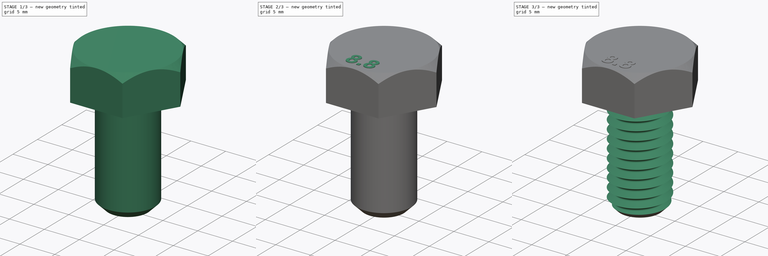
[diagram: build sequence overview — one tinted view per stage of 3, left to right]
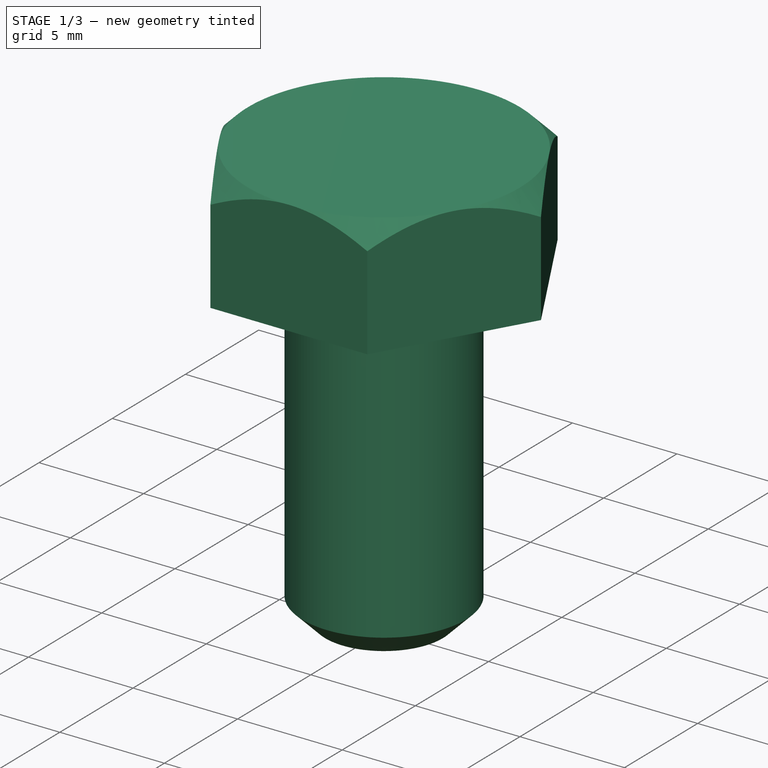
[diagram: stage 1 of 3 — iso view after this stage's code; geometry added in this stage tinted green]
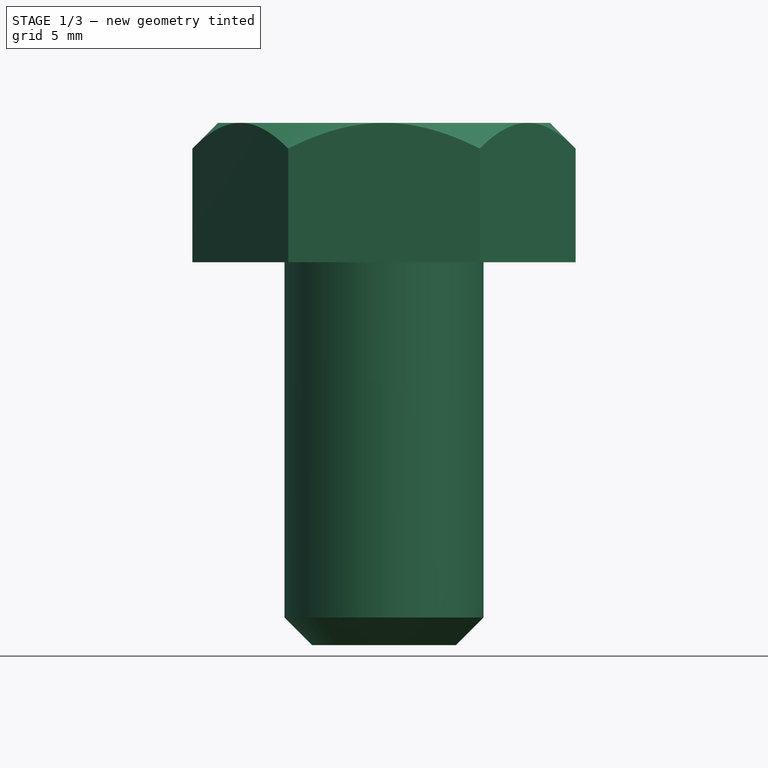
[diagram: stage 1 of 3 — front view after this stage's code; geometry added in this stage tinted green]
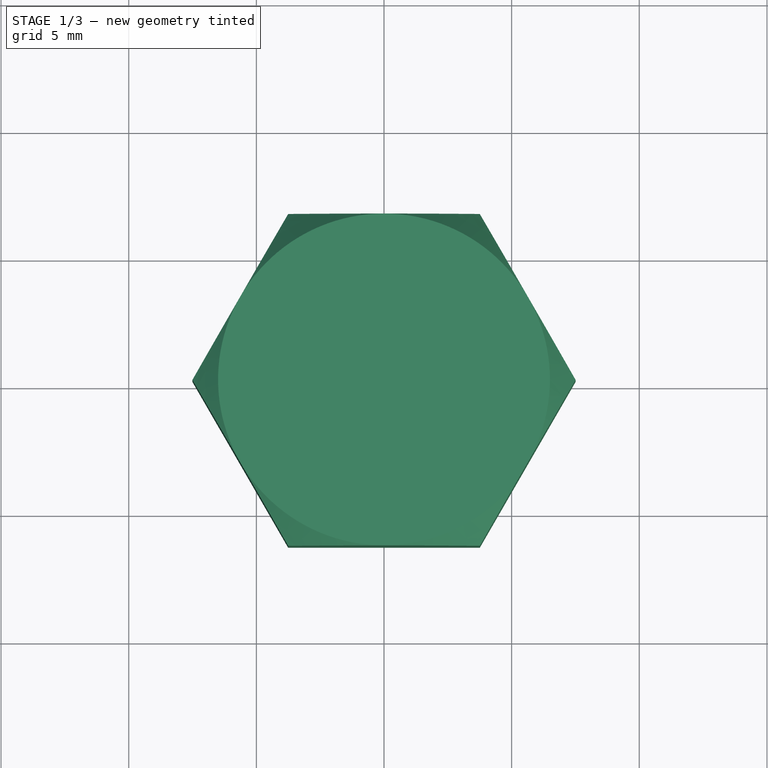
[diagram: stage 1 of 3 — top view after this stage's code; geometry added in this stage tinted green]
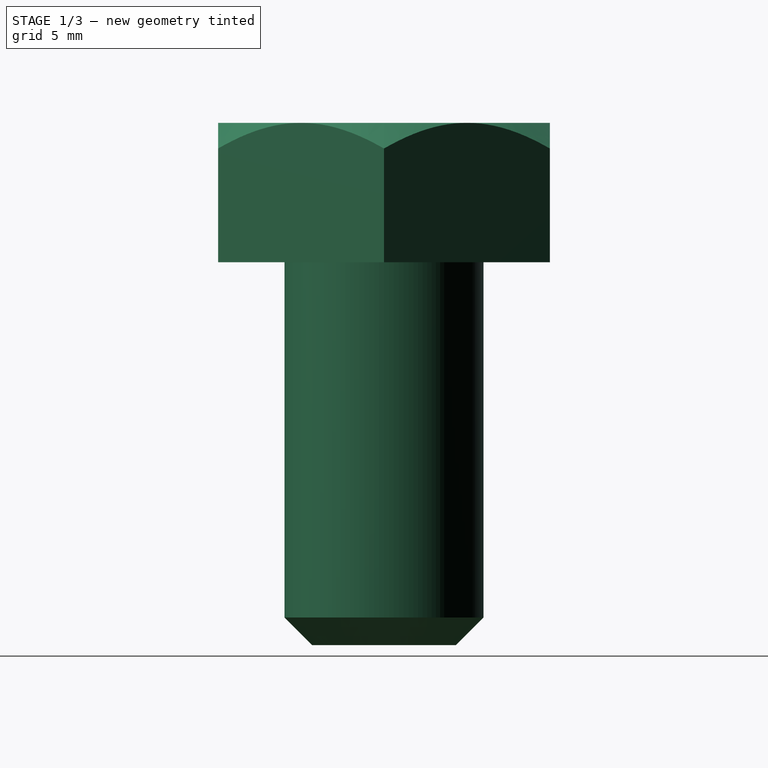
[diagram: stage 1 of 3 — right view after this stage's code; geometry added in this stage tinted green]
FCSTD DOCUMENT  (FreeCAD 1.0R39319 (Git))
Label: screw
License: All rights reserved
LicenseURL: https://en.wikipedia.org/wiki/All_rights_reserved
objects: Sketcher::SketchObject×3, PartDesign::SubtractiveHelix×2, PartDesign::Revolution×1, PartDesign::Pocket×1, Part::Part2DObjectPython×1, PartDesign::Pad×1, Spreadsheet::Sheet×1, PartDesign::Body×1
note: 23 computed .brp shape members not serialized (recipe doc carries the construction recipe); baked Part::Feature solids carry a one-line shape summary decoded from their .brp

FEATURE [Sketcher::SketchObject] Sketch
  ArcFitTolerance = 1e-06
  AttachmentSupport = -> [XZ_Plane]
  FullyConstrained = true
  MakeInternals = false
  MapMode = 5
  Placement = pos=(0,0,0) rot=(1,0,0;1.5708rad)
  expr: Constraints[14] = <<Spreadsheet>>.wrench / 2
  expr: Constraints[15] = <<Spreadsheet>>.H_ead
  expr: Constraints[18] = <<Spreadsheet>>.D / 2
  expr: Constraints[19] = <<Spreadsheet>>.pitch / 2 / tan(30)
  expr: Constraints[22] = <<Spreadsheet>>.L_ength
  expr: Constraints[23] = <<Spreadsheet>>.wrench / 2 / cos(30)
  sketch-geometry (8):
    g0: LineSegment StartX=0 StartY=0 StartZ=0 EndX=2.81747 EndY=0 EndZ=0
    g1: LineSegment StartX=3.9 StartY=1.08253 StartZ=0 EndX=3.9 EndY=15 EndZ=0
    g2: LineSegment StartX=3.9 StartY=15 StartZ=0 EndX=7.50555 EndY=15 EndZ=0
    g3: LineSegment StartX=7.50555 StartY=15 StartZ=0 EndX=7.50555 EndY=19.4544 EndZ=0
    g4: LineSegment StartX=7.50555 StartY=19.4544 StartZ=0 EndX=6.5 EndY=20.46 EndZ=0
    g5: LineSegment StartX=6.5 StartY=20.46 StartZ=0 EndX=0 EndY=20.46 EndZ=0
    g6: LineSegment StartX=0 StartY=20.46 StartZ=0 EndX=0 EndY=0 EndZ=0
    g7: LineSegment StartX=3.9 StartY=1.08253 StartZ=0 EndX=2.81747 EndY=0 EndZ=0
  constraints (24):
    c: Coincident(g-1,g0)
    c: PointOnObject(g0,g-1)
    c: Vertical(g1)
    c: Coincident(g1,g2)
    c: Horizontal(g2)
    c: Coincident(g2,g3)
    c: Coincident(g3,g4)
    c: Coincident(g4,g5)
    c: PointOnObject(g5,g-2)
    c: Horizontal(g5)
    c: Coincident(g5,g6)
    c: Coincident(g6,g0)
    c: Vertical(g3)
    c: Angle(g3,g4) = 0.785398
    c: DistanceX(g5,g5) = 6.5
    c: DistanceY(g1,g5) = 5.46
    c: Coincident(g1,g7)
    c: Coincident(g0,g7)
    c: DistanceX(g1) = 3.9
    c: DistanceX(g0,g1) = 1.08253
    c: Perpendicular(g4,g7)
    c: DistanceY(g6,g6) = 20.46
    c: DistanceY(g1) = 15
    c: DistanceX(g5,g2) = 7.50555
FEATURE [PartDesign::Revolution] Revolution
  Angle = 360
  Angle2 = 60
  Axis = (0,2e-16,1)
  Base = (0,0,0)
  Placement = pos=(0,0,0) rot=(1,0,0;1.5708rad)
  Profile = -> Sketch
  ReferenceAxis = -> Sketch [V_Axis]
  Refine = true
  Reversed = true
  Suppressed = false
  Type = 0
FEATURE [Sketcher::SketchObject] Sketch001
  ArcFitTolerance = 1e-06
  AttachmentOffset = pos=(0,0,15) rot=(0,0,1;0rad)
  AttachmentSupport = -> [XY_Plane]
  FullyConstrained = true
  MakeInternals = false
  MapMode = 5
  Placement = pos=(0,0,15) rot=(0,0,1;0rad)
  expr: .AttachmentOffset.Base.z = <<Spreadsheet>>.L_ength
  expr: Constraints[19] = <<Spreadsheet>>.wrench
  expr: Constraints[21] = <<Spreadsheet>>.wrench * 0.7
  sketch-geometry (8):
    g0: LineSegment StartX=7.50555 StartY=-6e-16 StartZ=0 EndX=3.75278 EndY=6.5 EndZ=0
    g1: LineSegment StartX=3.75278 StartY=6.5 StartZ=0 EndX=-3.75278 EndY=6.5 EndZ=0
    g2: LineSegment StartX=-3.75278 StartY=6.5 StartZ=0 EndX=-7.50555 EndY=9e-16 EndZ=0
    g3: LineSegment StartX=-7.50555 StartY=5e-16 StartZ=0 EndX=-3.75278 EndY=-6.5 EndZ=0
    g4: LineSegment StartX=-3.75278 StartY=-6.5 StartZ=0 EndX=3.75278 EndY=-6.5 EndZ=0
    g5: LineSegment StartX=3.75278 StartY=-6.5 StartZ=0 EndX=7.50555 EndY=-9e-16 EndZ=0
    g6: Circle [constr] CenterX=0 CenterY=0 CenterZ=0 NormalX=0 NormalY=0 NormalZ=1 AngleXU=0 Radius=7.50555
    g7: Circle CenterX=0 CenterY=0 CenterZ=0 NormalX=0 NormalY=0 NormalZ=1 AngleXU=0 Radius=9.1
  constraints (18):
    c: Coincident(g0,g1)
    c: Coincident(g1,g2)
    c: Coincident(g2,g3)
    c: Coincident(g3,g4)
    c: Coincident(g4,g5)
    c: Coincident(g5,g0)
    c: Equal(g0, g1-g5) x5
    c: PointOnObject(g0,g6)
    c: PointOnObject(g1,g6)
    c: PointOnObject(g2,g6)
    c: PointOnObject(g3,g6)
    c: PointOnObject(g4,g6)
    c: PointOnObject(g5,g6)
    c: Coincident(g6,g-1)
    c: Horizontal(g1)
    c: DistanceY(g4,g0) = 13
    c: Coincident(g7,g6)
    c: Radius(g7) = 9.1
FEATURE [PartDesign::Pocket] Pocket
  BaseFeature = -> Revolution
  Direction = (0,0,-1)
  Length = 5
  Length2 = 5
  Placement = pos=(0,0,0) rot=(1,0,0;1.5708rad)
  Profile = -> Sketch001
  ReferenceAxis = -> Sketch001 [N_Axis]
  Refine = true
  Reversed = true
  Suppressed = false
  Type = 1
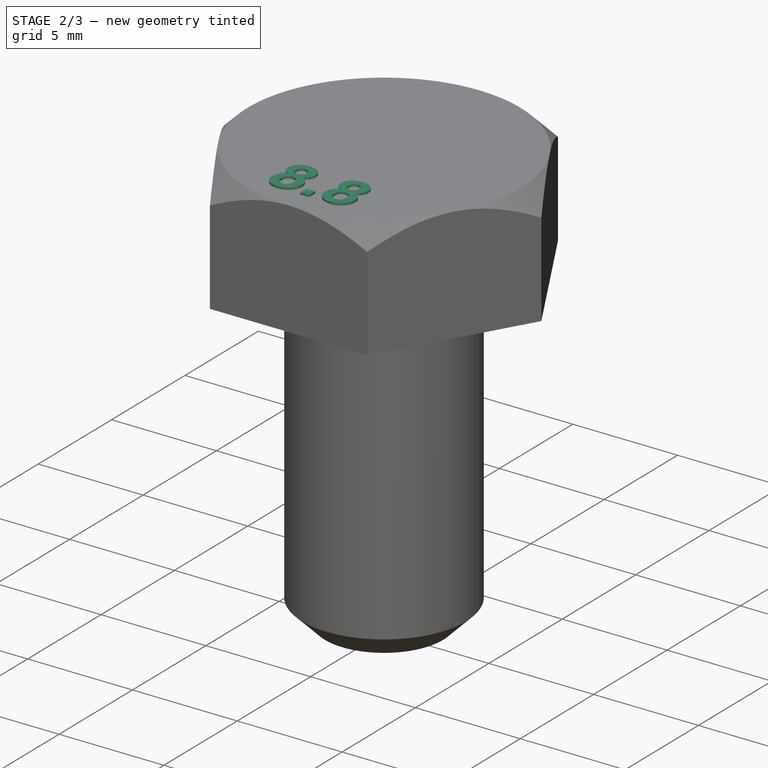
[diagram: stage 2 of 3 — iso view after this stage's code; geometry added in this stage tinted green]
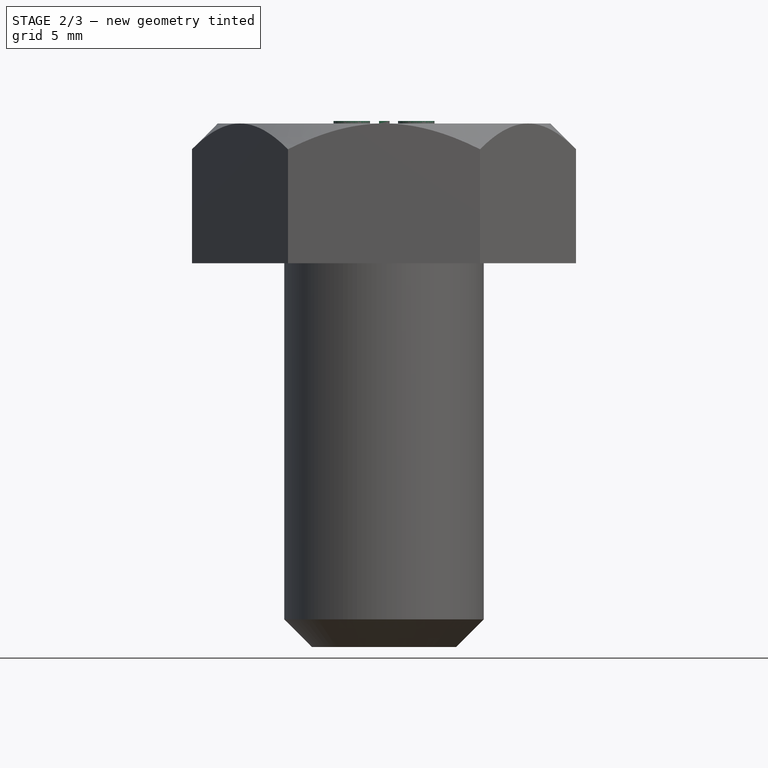
[diagram: stage 2 of 3 — front view after this stage's code; geometry added in this stage tinted green]
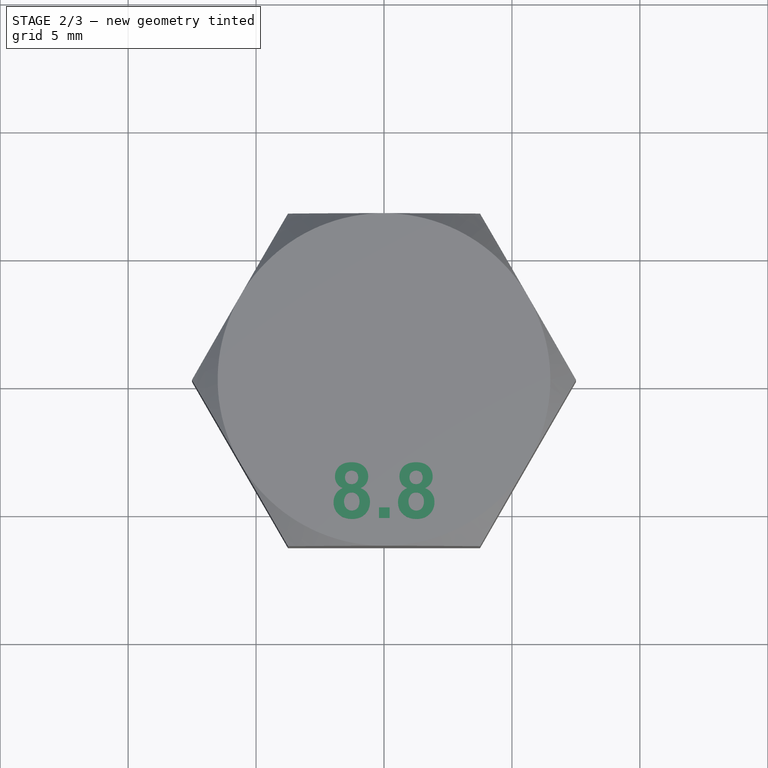
[diagram: stage 2 of 3 — top view after this stage's code; geometry added in this stage tinted green]
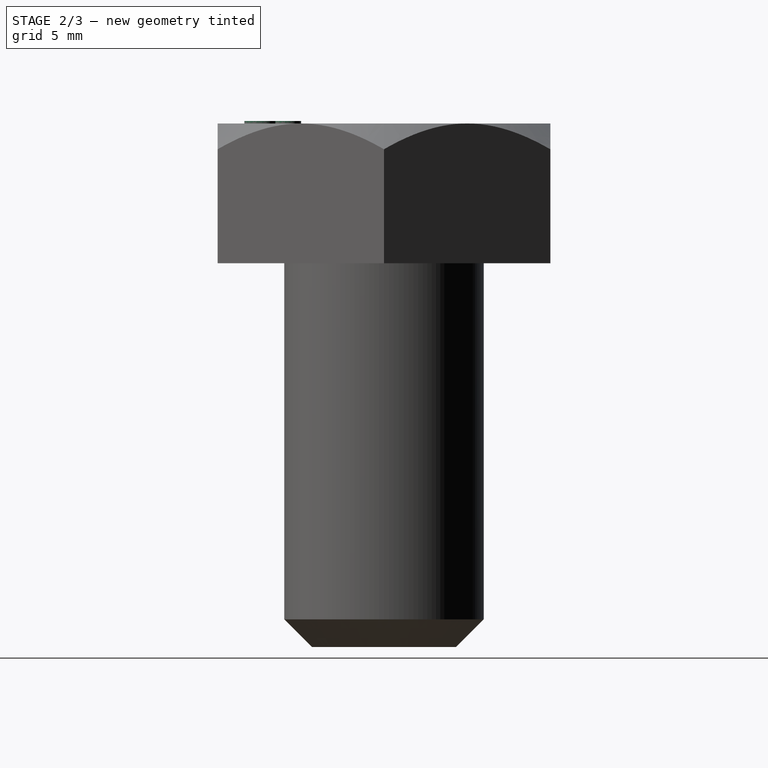
[diagram: stage 2 of 3 — right view after this stage's code; geometry added in this stage tinted green]
FEATURE [Sketcher::SketchObject] Sketch002
  ArcFitTolerance = 1e-06
  AttachmentOffset = pos=(3.9,14.375,0) rot=(0,0,1;0rad)
  AttachmentSupport = -> [XZ_Plane]
  FullyConstrained = true
  MakeInternals = false
  MapMode = 5
  Placement = pos=(3.9,3.2e-15,14.375) rot=(1,0,0;1.5708rad)
  expr: .AttachmentOffset.Base.x = <<Spreadsheet>>.D / 2
  expr: .AttachmentOffset.Base.y = <<Spreadsheet>>.L_ength - <<Spreadsheet>>.pitch / 2
  expr: Constraints[5] = <<Spreadsheet>>.pitch - 0.001
  expr: Constraints[8] = <<Spreadsheet>>.R
  sketch-geometry (4):
    g0: LineSegment StartX=0 StartY=0 StartZ=0 EndX=-0.850726 EndY=-0.491167 EndZ=0
    g1: LineSegment StartX=-0.850726 StartY=-0.757833 StartZ=0 EndX=0 EndY=-1.249 EndZ=0
    g2: LineSegment StartX=0 StartY=-1.249 StartZ=0 EndX=0 EndY=0 EndZ=0
    g3: ArcOfCircle CenterX=-0.773746 CenterY=-0.6245 CenterZ=0 NormalX=0 NormalY=0 NormalZ=1 AngleXU=0 Radius=0.15396 StartAngle=2.0944 EndAngle=4.18879
  constraints (10):
    c: Coincident(g1,g2)
    c: Coincident(g2,g0)
    c: Vertical(g2)
    c: Equal(g0,g1)
    c: Angle(g1,g0) = 1.0472
    c: DistanceY(g2,g2) = 1.249
    c: Tangent(g3,g0) = -1.5708
    c: Tangent(g3,g1) = -1.5708
    c: Radius(g3) = 0.15396
    c: Coincident(g0,g-1)
FEATURE [Part::Part2DObjectPython] ShapeString  # Draft 2D object (typed FeaturePython)
  FontFile = <path>
  Fuse = false
  Justification = 4
  JustificationReference = 0
  KeepLeftMargin = false
  MakeFace = true
  ObliqueAngle = 0
  Placement = pos=(0,-4.33333,20.46) rot=(0,0,1;0rad)
  ScaleToSize = true
  Size = 2.16667
  String = 8.8
  Tracking = 0
  expr: .Placement.Base.y = -<<Spreadsheet>>.wrench / 3
  expr: .Placement.Base.z = <<Spreadsheet>>.L_ength + <<Spreadsheet>>.H_ead
  expr: Size = <<Spreadsheet>>.wrench / 6
FEATURE [PartDesign::Pad] Pad
  BaseFeature = -> Pocket
  Direction = (0,0,1)
  Length = 0.1
  Length2 = 10
  Placement = pos=(0,0,0) rot=(1,0,0;1.5708rad)
  Profile = -> ShapeString
  ReferenceAxis = -> ShapeString [N_Axis]
  Refine = true
  Suppressed = false
  Type = 0
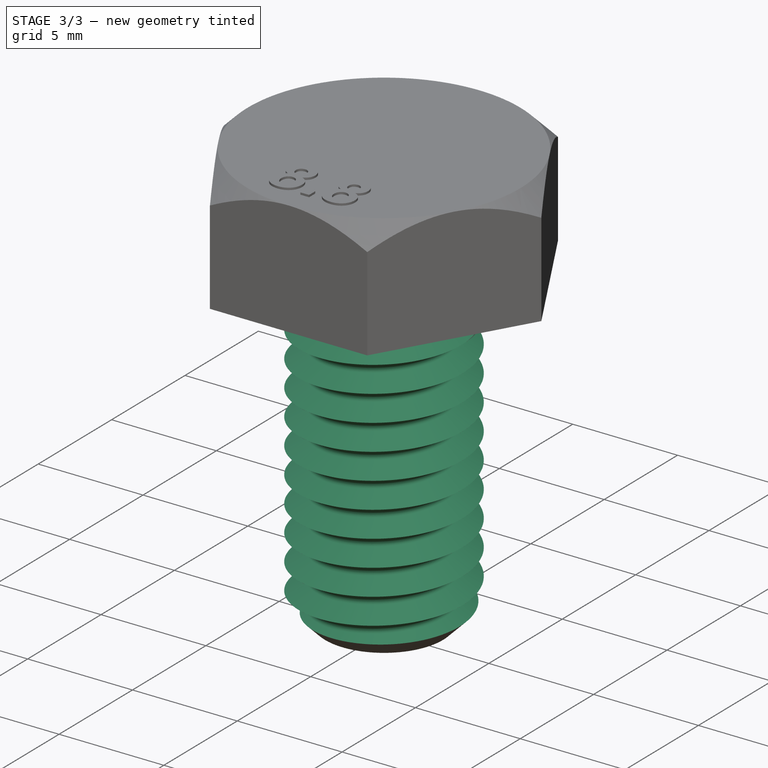
[diagram: stage 3 of 3 — iso view after this stage's code; geometry added in this stage tinted green]
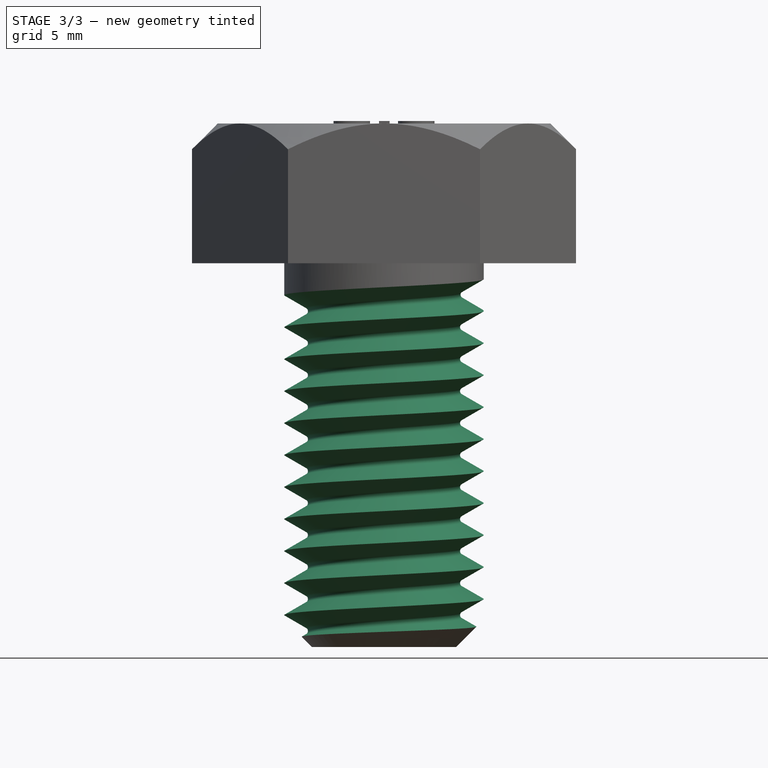
[diagram: stage 3 of 3 — front view after this stage's code; geometry added in this stage tinted green]
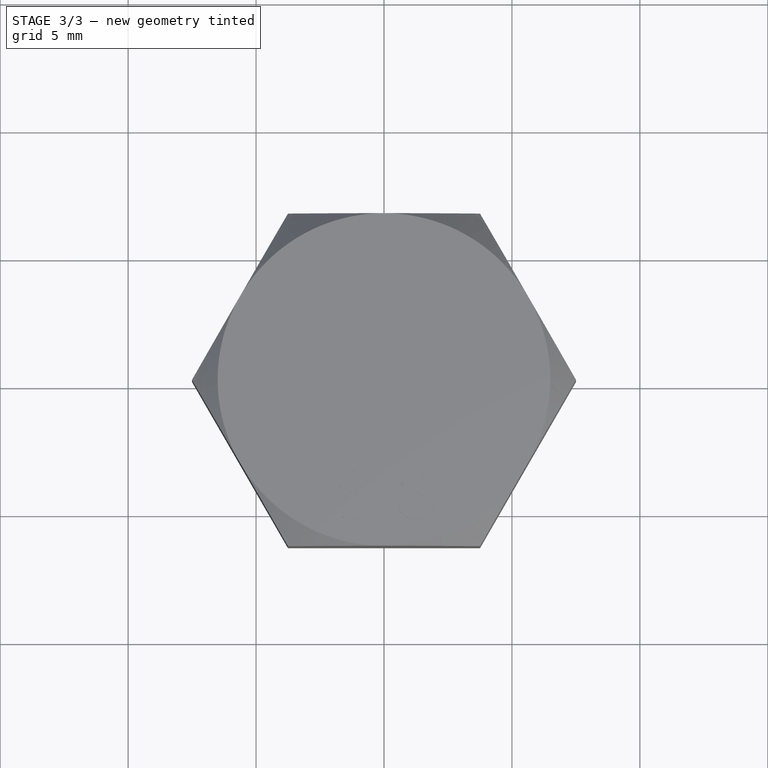
[diagram: stage 3 of 3 — top view after this stage's code; geometry added in this stage tinted green]
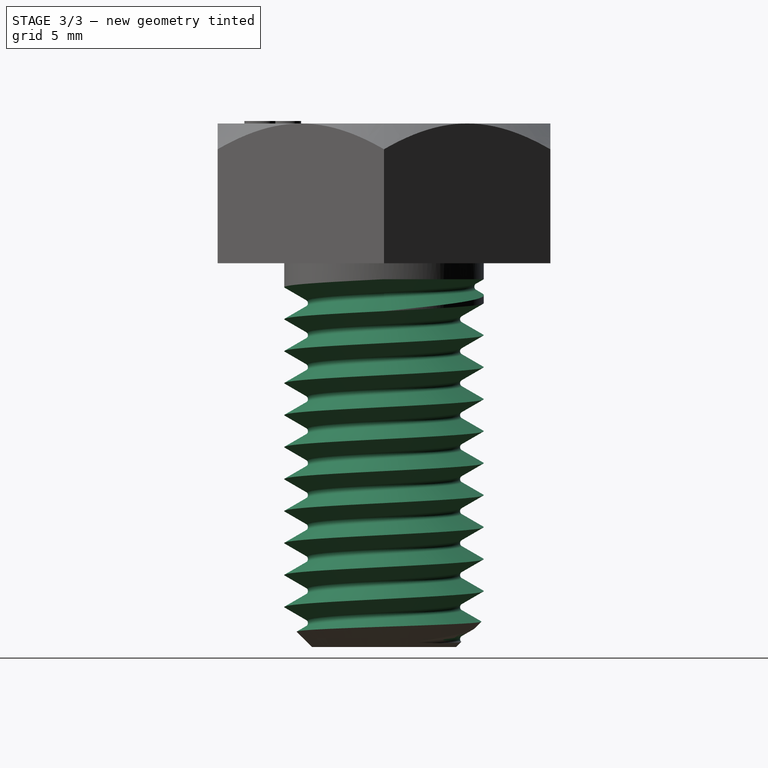
[diagram: stage 3 of 3 — right view after this stage's code; geometry added in this stage tinted green]
FEATURE [PartDesign::SubtractiveHelix] SubtractiveHelix
  Angle = 0
  Axis = (1e-16,1e-16,1)
  Base = (0,0,0)
  BaseFeature = -> Pad
  Growth = 0
  HasBeenEdited = true
  Height = 15
  LeftHanded = false
  Mode = 1
  Outside = false
  Pitch = 1.25
  Placement = pos=(0,0,0) rot=(1,0,0;1.5708rad)
  Profile = -> Sketch002
  ReferenceAxis = -> Z_Axis
  Refine = true
  Reversed = true
  Suppressed = false
  Tolerance = 0.1
  Turns = 12
  expr: Pitch = <<Spreadsheet>>.pitch
  expr: Turns = <<Spreadsheet>>.L_ength / <<Spreadsheet>>.pitch
FEATURE [Spreadsheet::Sheet] Spreadsheet
  cells = A1='M; B1(M_etric)=8; C1=' metric number; A2='L_ength; B2(L_ength)=15; C2=' Length; A3='pitch; B3(pitch)=1.25; C3=' pitch, from the backside of a calliper; A4='wrench; B4(wrench)=13; C4=' wrench width [mm]; A5='These parameters get calculated from your inputs above; A6='D_iameter; B6(D)==M_etric * 0.975; C6=' M8   fitting 6h it´s ca. minuus 2.5%; A7='H_eight; B7(H_eight)==tan(30) / (pitch / 2); C7=' H = tan( 60 / 2 ) / ( pitch / 2); A8='R; B8(R)==H_eight / 6; C8=' base radius = H / 6; A9='H_ead; B9(H_ead)==wrench * 0.42; C9=' ca. wrench width * 0,42
FEATURE [PartDesign::SubtractiveHelix] SubtractiveHelix001
  Angle = 60
  Axis = (1e-16,1e-16,1)
  Base = (0,0,0)
  BaseFeature = -> SubtractiveHelix
  Growth = 2.16506
  HasBeenEdited = true
  Height = 0.5625
  LeftHanded = false
  Mode = 1
  Outside = false
  Pitch = 1.25
  Placement = pos=(0,0,0) rot=(1,0,0;1.5708rad)
  Profile = -> Sketch002
  ReferenceAxis = -> Z_Axis
  Refine = true
  Suppressed = false
  Tolerance = 0.1
  Turns = 0.45
  expr: Pitch = <<Spreadsheet>>.pitch
FEATURE [PartDesign::Body] Body
  AllowCompound = false
  Group = -> [Sketch,Revolution,Sketch001,Pocket,Sketch002,ShapeString,Pad,SubtractiveHelix,SubtractiveHelix001]
  Origin = -> Origin
  Tip = -> SubtractiveHelix001
note: 1 file-system path scrubbed to <path> (originals preserved in the JSON sidecar)
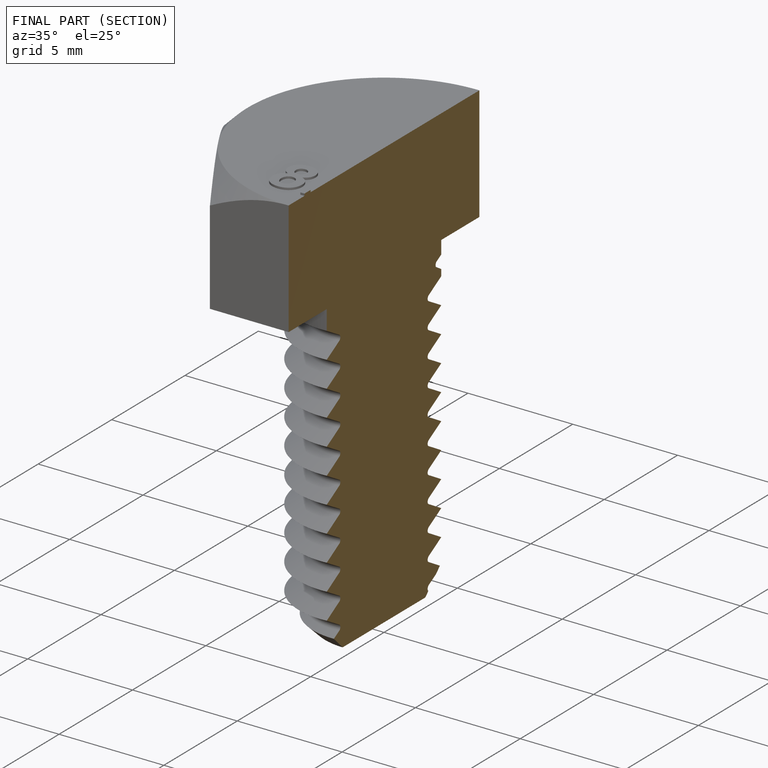
[diagram: finished part — half-section view (interior)]
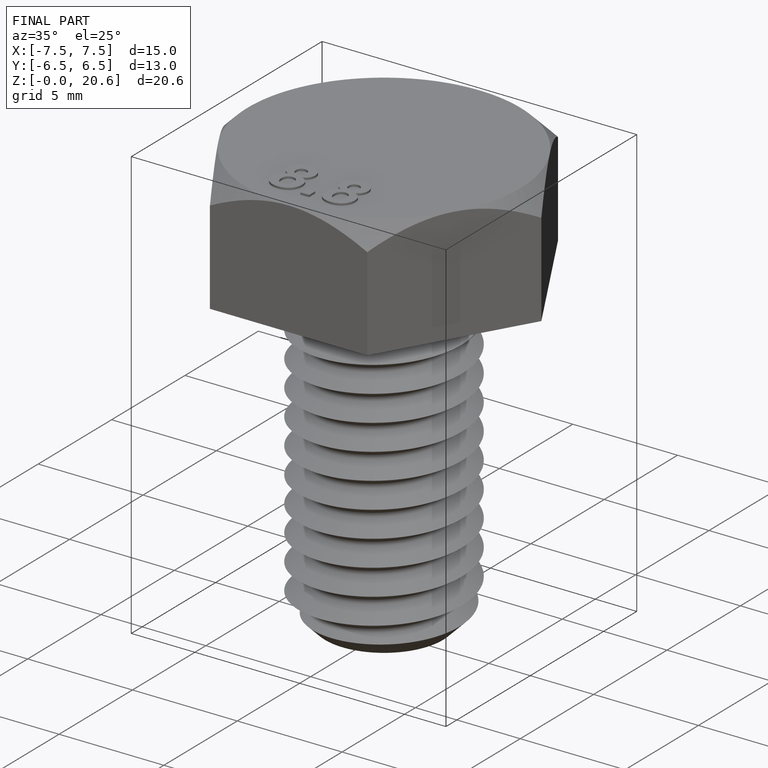
[diagram: finished part — iso view with bounding-box wireframe]
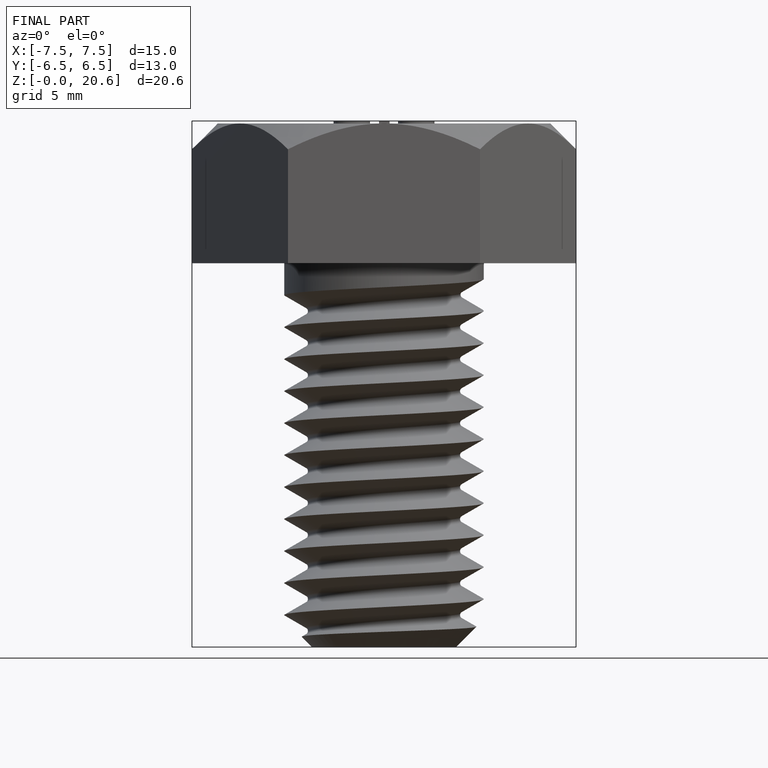
[diagram: finished part — front view with bounding-box wireframe]
